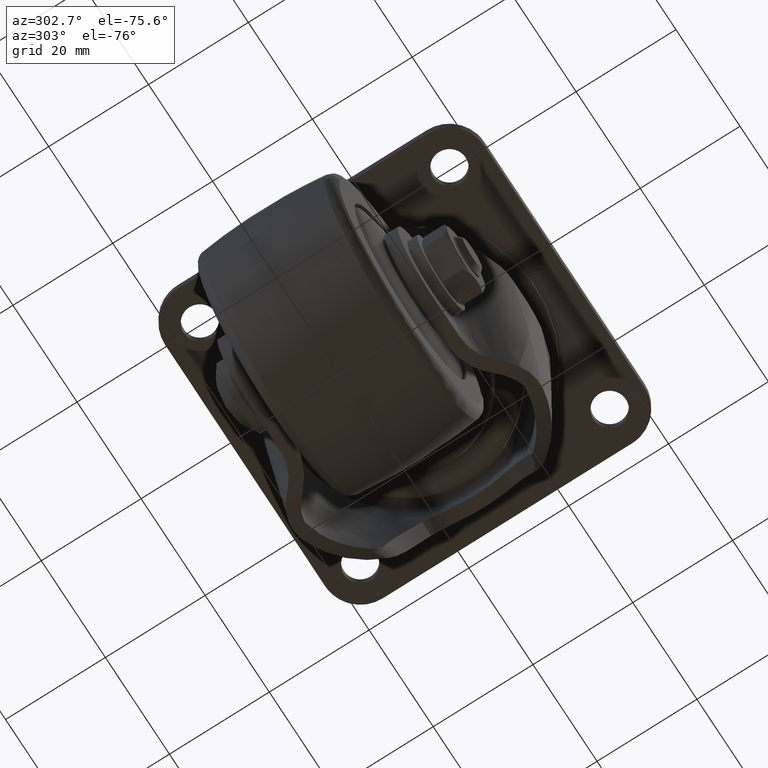
[diagram: clean part render]
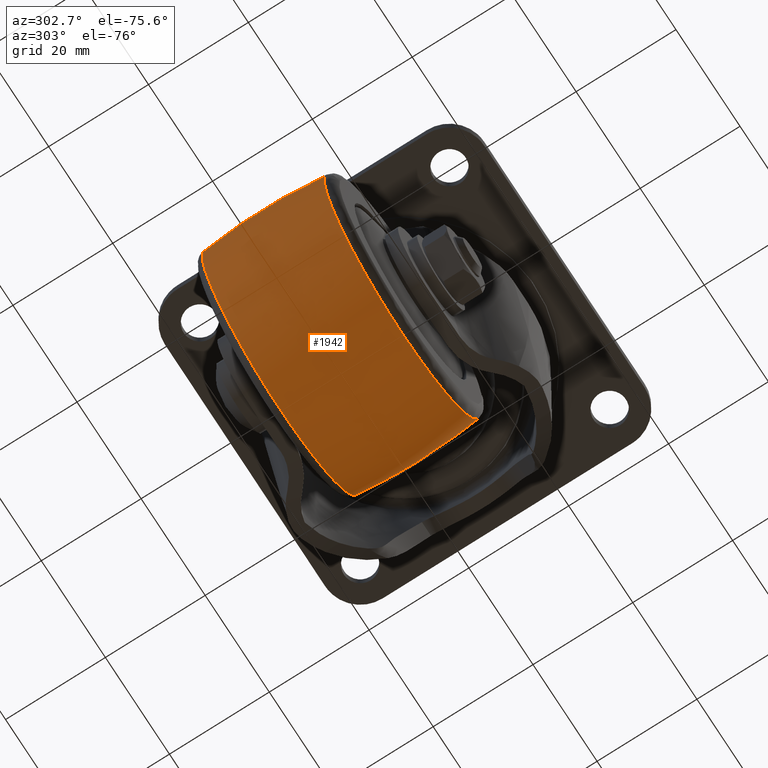
[diagram: same view with one face highlighted and labeled with its STEP entity id]
A machine part, auxiliary view. The second image highlights one B-rep face of the part: STEP entity #1942.
In plain terms, the highlighted face is a freeform B-spline surface patch.
Its self-contained STEP definition (entity closure, byte-faithful):
#1449=CARTESIAN_POINT('',(7.437307202586350,-12.244905445174600,-23.921292279421799));
#1450=VERTEX_POINT('',#1449);
#1451=CARTESIAN_POINT('',(0.0,-12.244905632117639,-22.752520001460660));
#1452=VERTEX_POINT('',#1451);
#1453=CARTESIAN_POINT('',(7.437307202586351,-12.244905445174602,-23.921292279421795));
#1454=CARTESIAN_POINT('',(3.810489843487589,-12.244905632117634,-22.752520001460660));
#1455=CARTESIAN_POINT('',(0.0,-12.244905632117639,-22.752520001460660));
#1463=(BOUNDED_CURVE()B_SPLINE_CURVE(2,(#1453,#1454,#1455),.UNSPECIFIED.,.F.,.U.)B_SPLINE_CURVE_WITH_KNOTS((3,3),(0.447834737089753,0.500000000000000),.UNSPECIFIED.)CURVE()GEOMETRIC_REPRESENTATION_ITEM()RATIONAL_B_SPLINE_CURVE((0.903273996103340,0.938884592943871,1.0))REPRESENTATION_ITEM(''));
#1464=EDGE_CURVE('',#1450,#1452,#1463,.T.);
#1466=CARTESIAN_POINT('',(-24.085305413202299,-12.244911695765451,-44.200301239055072));
#1467=VERTEX_POINT('',#1466);
#1481=CARTESIAN_POINT('',(0.0,-12.244897959183620,-71.247480945206689));
#1482=VERTEX_POINT('',#1481);
#1483=CARTESIAN_POINT('',(-24.085305413202295,-12.244911695765447,-44.200301239055072));
#1484=CARTESIAN_POINT('',(-24.247479305167658,-12.244911341484039,-45.595453714975250));
#1485=CARTESIAN_POINT('',(-24.247479353925179,-12.244910943635130,-47.000000184972073));
#1486=CARTESIAN_POINT('',(-24.247480195653804,-12.244904075344220,-71.247481032335415));
#1487=CARTESIAN_POINT('',(0.0,-12.244897959183620,-71.247480945206689));
#1495=(BOUNDED_CURVE()B_SPLINE_CURVE(2,(#1483,#1484,#1485,#1486,#1487),.UNSPECIFIED.,.F.,.U.)B_SPLINE_CURVE_WITH_KNOTS((3,2,3),(0.730000124617923,0.750000000000000,1.0),.UNSPECIFIED.)CURVE()GEOMETRIC_REPRESENTATION_ITEM()RATIONAL_B_SPLINE_CURVE((0.956886363469089,0.976568688493902,1.0,0.707106781186548,1.0))REPRESENTATION_ITEM(''));
#1496=EDGE_CURVE('',#1467,#1482,#1495,.T.);
#1498=CARTESIAN_POINT('',(24.092571030981478,-12.244902200572319,-44.263516990894992));
#1499=VERTEX_POINT('',#1498);
#1500=CARTESIAN_POINT('',(0.0,-12.244897959183620,-71.247480945206689));
#1501=CARTESIAN_POINT('',(24.247480945206703,-12.244897959183621,-71.247480945206689));
#1502=CARTESIAN_POINT('',(24.247480945206700,-12.244901795650630,-47.000000473333678));
#1503=CARTESIAN_POINT('',(24.247480945206696,-12.244902012829307,-45.627374075524905));
#1504=CARTESIAN_POINT('',(24.092571030981482,-12.244902200572319,-44.263516990894985));
#1512=(BOUNDED_CURVE()B_SPLINE_CURVE(2,(#1500,#1501,#1502,#1503,#1504),.UNSPECIFIED.,.F.,.U.)B_SPLINE_CURVE_WITH_KNOTS((3,2,3),(0.0,0.250000000000000,0.269555767098345),.UNSPECIFIED.)CURVE()GEOMETRIC_REPRESENTATION_ITEM()RATIONAL_B_SPLINE_CURVE((1.0,0.707106781186548,1.0,0.977088993712798,0.957762325849126))REPRESENTATION_ITEM(''));
#1513=EDGE_CURVE('',#1482,#1499,#1512,.T.);
#1612=CARTESIAN_POINT('',(24.092571030981478,-12.244902200572321,-44.263516990894985));
#1613=CARTESIAN_POINT('',(22.327066052880056,-12.244904687992102,-28.719641691100417));
#1614=CARTESIAN_POINT('',(7.437307202586351,-12.244905445174602,-23.921292279421795));
#1622=(BOUNDED_CURVE()B_SPLINE_CURVE(2,(#1612,#1613,#1614),.UNSPECIFIED.,.F.,.U.)B_SPLINE_CURVE_WITH_KNOTS((3,3),(0.269555767098345,0.447834737089753),.UNSPECIFIED.)CURVE()GEOMETRIC_REPRESENTATION_ITEM()RATIONAL_B_SPLINE_CURVE((0.957762325849125,0.781571925197797,0.903273996103340))REPRESENTATION_ITEM(''));
#1623=EDGE_CURVE('',#1499,#1450,#1622,.T.);
#1666=CARTESIAN_POINT('',(24.241339149692109,12.244901148250840,-47.545709782911771));
#1667=VERTEX_POINT('',#1666);
#1668=CARTESIAN_POINT('',(0.0,12.244904534424281,-22.752519866029939));
#1669=VERTEX_POINT('',#1668);
#1670=CARTESIAN_POINT('',(24.241339149692109,12.244901148250838,-47.545709782911771));
#1671=CARTESIAN_POINT('',(24.247480945206650,12.244901209804015,-47.272889656305118));
#1672=CARTESIAN_POINT('',(24.247480945206650,12.244901246803989,-47.000000405618302));
#1673=CARTESIAN_POINT('',(24.247480945206650,12.244904534424279,-22.752519866029939));
#1674=CARTESIAN_POINT('',(0.0,12.244904534424281,-22.752519866029939));
#1682=(BOUNDED_CURVE()B_SPLINE_CURVE(2,(#1670,#1671,#1672,#1673,#1674),.UNSPECIFIED.,.F.,.U.)B_SPLINE_CURVE_WITH_KNOTS((3,2,3),(0.246039454832439,0.250000000000000,0.500000000000000),.UNSPECIFIED.)CURVE()GEOMETRIC_REPRESENTATION_ITEM()RATIONAL_B_SPLINE_CURVE((0.990866882989583,0.995359932710469,1.0,0.707106781186548,1.0))REPRESENTATION_ITEM(''));
#1683=EDGE_CURVE('',#1667,#1669,#1682,.T.);
#1792=CARTESIAN_POINT('',(0.0,12.244897959183699,-71.247480945206647));
#1793=VERTEX_POINT('',#1792);
#1794=CARTESIAN_POINT('',(0.0,12.244897959183699,-71.247480945206647));
#1795=CARTESIAN_POINT('',(23.707776449493490,12.244897959183701,-71.247480945206647));
#1796=CARTESIAN_POINT('',(24.241339149692106,12.244901148250838,-47.545709782911764));
#1804=(BOUNDED_CURVE()B_SPLINE_CURVE(2,(#1794,#1795,#1796),.UNSPECIFIED.,.F.,.U.)B_SPLINE_CURVE_WITH_KNOTS((3,3),(0.0,0.246039454832440),.UNSPECIFIED.)CURVE()GEOMETRIC_REPRESENTATION_ITEM()RATIONAL_B_SPLINE_CURVE((1.0,0.711746848476079,0.990866882989583))REPRESENTATION_ITEM(''));
#1805=EDGE_CURVE('',#1793,#1667,#1804,.T.);
#1807=CARTESIAN_POINT('',(-24.085305530870230,12.244910682696441,-44.200301168823337));
#1808=VERTEX_POINT('',#1807);
#1809=CARTESIAN_POINT('',(-24.085305530870233,12.244910682696442,-44.200301168823344));
#1810=CARTESIAN_POINT('',(-24.247479426119764,12.244910354543173,-45.595453672733605));
#1811=CARTESIAN_POINT('',(-24.247479471281430,12.244909986035511,-47.000000171330470));
#1812=CARTESIAN_POINT('',(-24.247480250932934,12.244903624279141,-71.247481025909678));
#1813=CARTESIAN_POINT('',(0.0,12.244897959183699,-71.247480945206647));
#1821=(BOUNDED_CURVE()B_SPLINE_CURVE(2,(#1809,#1810,#1811,#1812,#1813),.UNSPECIFIED.,.F.,.U.)B_SPLINE_CURVE_WITH_KNOTS((3,2,3),(0.730000124226031,0.750000000000000,1.0),.UNSPECIFIED.)CURVE()GEOMETRIC_REPRESENTATION_ITEM()RATIONAL_B_SPLINE_CURVE((0.956886362697749,0.976568688034772,1.0,0.707106781186548,1.0))REPRESENTATION_ITEM(''));
#1822=EDGE_CURVE('',#1808,#1793,#1821,.T.);
#1872=CARTESIAN_POINT('',(-23.929208491353144,-13.457557421528243,-44.218428824576947));
#1873=CARTESIAN_POINT('',(-25.744668332074077,-0.000002263184557,-44.007396739461726));
#1874=CARTESIAN_POINT('',(-23.929209090913570,13.457552977134302,-44.218428754883050));
#1875=CARTESIAN_POINT('',(-24.090333273464530,-13.457557421528248,-45.604547769989381));
#1876=CARTESIAN_POINT('',(-25.918017320070636,-0.000002263184558,-45.498677678876916));
#1877=CARTESIAN_POINT('',(-24.090333877062019,13.457552977134300,-45.604547735025491));
#1878=CARTESIAN_POINT('',(-24.090333273464523,-13.457557421528250,-46.999999999999993));
#1879=CARTESIAN_POINT('',(-25.918017320070632,-0.000002263184560,-46.999999999999979));
#1880=CARTESIAN_POINT('',(-24.090333877062026,13.457552977134297,-46.999999999999993));
#1881=CARTESIAN_POINT('',(-24.090333273464545,-13.457557421528245,-71.090333273464523));
#1882=CARTESIAN_POINT('',(-25.918017320070639,-0.000002263184556,-72.918017320070646));
#1883=CARTESIAN_POINT('',(-24.090333877062022,13.457552977134297,-71.090333877062037));
#1884=CARTESIAN_POINT('',(0.0,-13.457557421528250,-71.090333273464509));
#1885=CARTESIAN_POINT('',(0.0,-0.000002263184560,-72.918017320070604));
#1886=CARTESIAN_POINT('',(0.0,13.457552977134297,-71.090333877062008));
#1887=CARTESIAN_POINT('',(24.090333273464527,-13.457557421528245,-71.090333273464537));
#1888=CARTESIAN_POINT('',(25.918017320070639,-0.000002263184556,-72.918017320070661));
#1889=CARTESIAN_POINT('',(24.090333877062022,13.457552977134297,-71.090333877062037));
#1890=CARTESIAN_POINT('',(24.090333273464523,-13.457557421528250,-46.999999999999993));
#1891=CARTESIAN_POINT('',(25.918017320070632,-0.000002263184560,-46.999999999999979));
#1892=CARTESIAN_POINT('',(24.090333877062026,13.457552977134297,-46.999999999999993));
#1893=CARTESIAN_POINT('',(24.090333273464545,-13.457557421528245,-22.909666726535477));
#1894=CARTESIAN_POINT('',(25.918017320070639,-0.000002263184556,-21.081982679929361));
#1895=CARTESIAN_POINT('',(24.090333877062022,13.457552977134297,-22.909666122937971));
#1896=CARTESIAN_POINT('',(0.0,-13.457557421528250,-22.909666726535473));
#1897=CARTESIAN_POINT('',(0.0,-0.000002263184560,-21.081982679929364));
#1898=CARTESIAN_POINT('',(0.0,13.457552977134297,-22.909666122937985));
#1906=(BOUNDED_SURFACE()B_SPLINE_SURFACE(2,2,((#1872,#1875,#1878,#1881,#1884,#1887,#1890,#1893,#1896),(#1873,#1876,#1879,#1882,#1885,#1888,#1891,#1894,#1897),(#1874,#1877,#1880,#1883,#1886,#1889,#1892,#1895,#1898)),.UNSPECIFIED.,.F.,.F.,.U.)B_SPLINE_SURFACE_WITH_KNOTS((3,3),(3,2,2,2,3),(0.0,27.038088605630548),(0.0,3.313707807691295,44.735064045000762,86.156420282310236,127.577776519619700),.UNSPECIFIED.)GEOMETRIC_REPRESENTATION_ITEM()RATIONAL_B_SPLINE_SURFACE(((0.841100968425624,0.858401776631220,0.878997976057558,0.621545429519550,0.878997976057558,0.621545429519550,0.878997976057558,0.621545429519550,0.878997976057558),(0.833449754054304,0.850593182590458,0.871002025274905,0.615891438499102,0.871002025274905,0.615891438499102,0.871002025274905,0.615891438499102,0.871002025274905),(0.841100965875594,0.858401774028737,0.878997973392632,0.621545427635163,0.878997973392632,0.621545427635163,0.878997973392632,0.621545427635163,0.878997973392632)))REPRESENTATION_ITEM('')SURFACE());
#1907=ORIENTED_EDGE('',*,*,#1496,.F.);
#1908=CARTESIAN_POINT('',(-24.085305413202292,-12.244911695765449,-44.200301239055065));
#1909=CARTESIAN_POINT('',(-25.585948234577518,-0.000000514244986,-44.025863944466430));
#1910=CARTESIAN_POINT('',(-24.085305530870230,12.244910682696446,-44.200301168823351));
#1918=(BOUNDED_CURVE()B_SPLINE_CURVE(2,(#1908,#1909,#1910),.UNSPECIFIED.,.F.,.U.)B_SPLINE_CURVE_WITH_KNOTS((3,3),(0.418701628510370,0.581298364712501),.UNSPECIFIED.)CURVE()GEOMETRIC_REPRESENTATION_ITEM()RATIONAL_B_SPLINE_CURVE((0.840437587031662,0.834113120065600,0.840437586504447))REPRESENTATION_ITEM(''));
#1919=EDGE_CURVE('',#1467,#1808,#1918,.T.);
#1920=ORIENTED_EDGE('',*,*,#1919,.T.);
#1921=ORIENTED_EDGE('',*,*,#1822,.T.);
#1922=ORIENTED_EDGE('',*,*,#1805,.T.);
#1923=ORIENTED_EDGE('',*,*,#1683,.T.);
#1924=CARTESIAN_POINT('',(0.0,-12.244905632117643,-22.752520001460660));
#1925=CARTESIAN_POINT('',(0.0,-0.000000557201236,-21.241774266467381));
#1926=CARTESIAN_POINT('',(0.0,12.244904534424274,-22.752519866029935));
#1934=(BOUNDED_CURVE()B_SPLINE_CURVE(2,(#1924,#1925,#1926),.UNSPECIFIED.,.F.,.U.)B_SPLINE_CURVE_WITH_KNOTS((3,3),(0.418701669074372,0.581298323582388),.UNSPECIFIED.)CURVE()GEOMETRIC_REPRESENTATION_ITEM()RATIONAL_B_SPLINE_CURVE((0.878304709305647,0.871695290992850,0.878304708708653))REPRESENTATION_ITEM(''));
#1935=EDGE_CURVE('',#1452,#1669,#1934,.T.);
#1936=ORIENTED_EDGE('',*,*,#1935,.F.);
#1937=ORIENTED_EDGE('',*,*,#1464,.F.);
#1938=ORIENTED_EDGE('',*,*,#1623,.F.);
#1939=ORIENTED_EDGE('',*,*,#1513,.F.);
#1940=EDGE_LOOP('',(#1907,#1920,#1921,#1922,#1923,#1936,#1937,#1938,#1939));
#1941=FACE_OUTER_BOUND('',#1940,.T.);
#1942=ADVANCED_FACE('',(#1941),#1906,.T.);